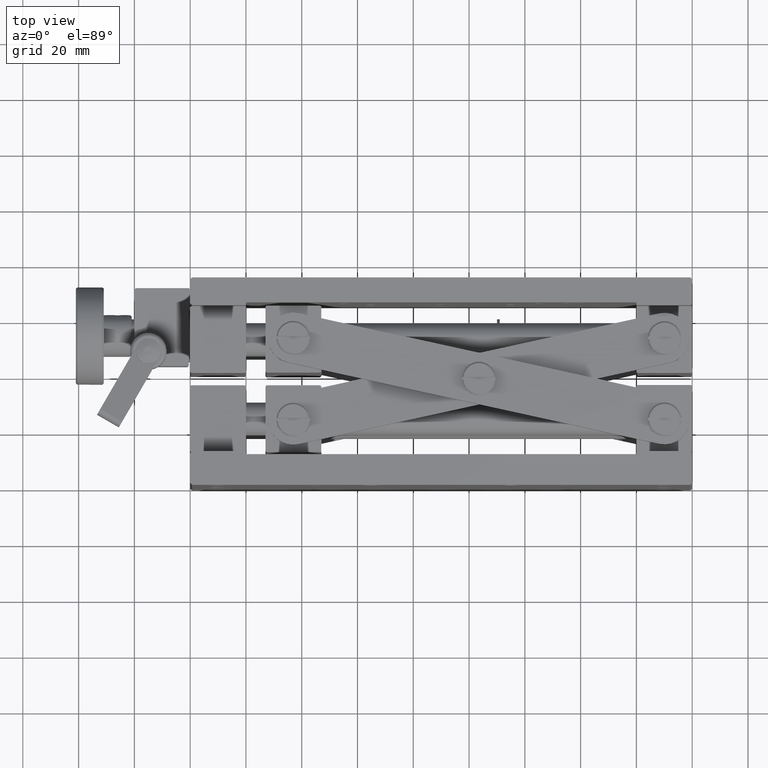
[diagram: clean part render]
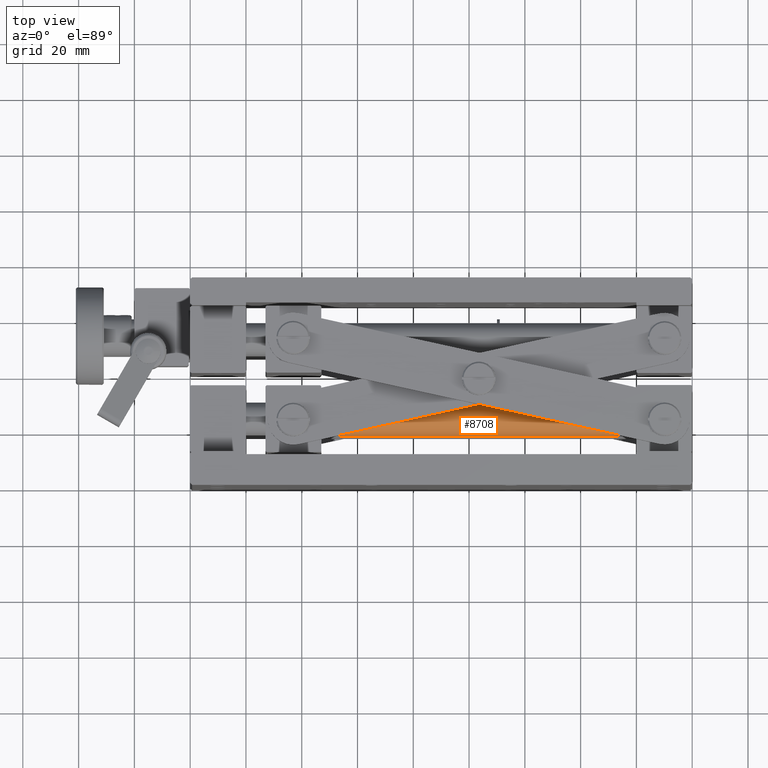
[diagram: same view with one face highlighted and labeled with its STEP entity id]
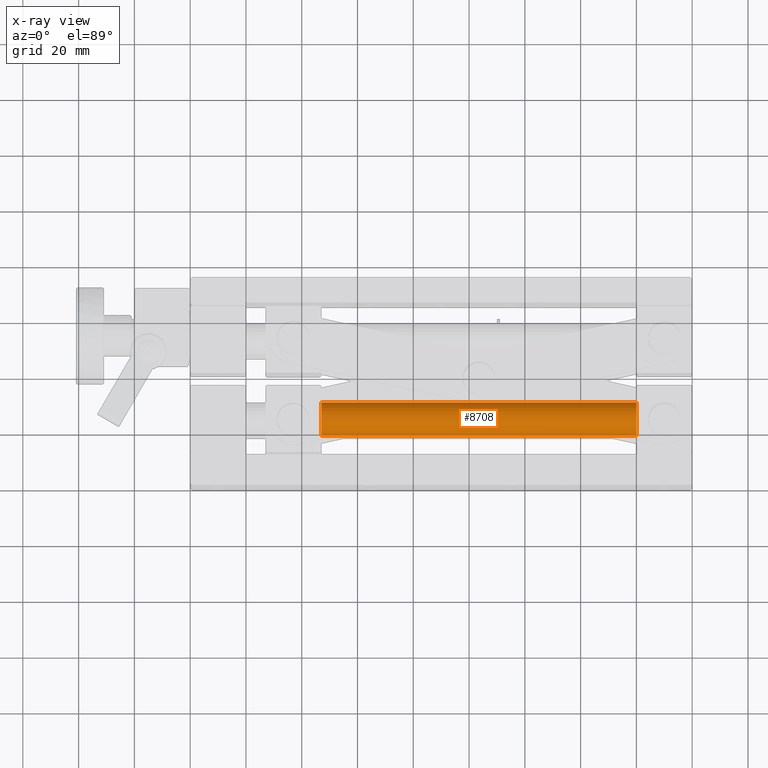
[diagram: x-ray of the same camera — body ghosted, the highlighted face saturated]
A machine part, top view. The second image highlights one B-rep face of the part: STEP entity #8708.
The next image is the same camera in x-ray: the body ghosted, the highlighted face saturated — about 0% of this face is hidden behind the body in this view.
In plain terms, the highlighted cylindrical surface (bore or boss wall) has radius 6 mm, axis along (-1, 0, 0).
Its self-contained STEP definition (entity closure, byte-faithful):
#138 = CARTESIAN_POINT ( 'NONE',  ( 180.0000000000000000, 24.00000000000000000, -28.50000000000000000 ) ) ;
#170 = CARTESIAN_POINT ( 'NONE',  ( 46.99999999999998579, 24.00000000000000000, -28.50000000000000000 ) ) ;
#345 = DIRECTION ( 'NONE',  ( 0.000000000000000000, 0.000000000000000000, 1.000000000000000000 ) ) ;
#422 = ORIENTED_EDGE ( 'NONE', *, *, #5682, .T. ) ;
#829 = AXIS2_PLACEMENT_3D ( 'NONE', #138, #7785, #3995 ) ;
#1549 = FACE_OUTER_BOUND ( 'NONE', #8680, .T. ) ;
#2032 = CARTESIAN_POINT ( 'NONE',  ( 160.0000000000000000, 24.00000000000000000, -22.50000000000000000 ) ) ;
#2649 = CYLINDRICAL_SURFACE ( 'NONE', #829, 6.000000000000001776 ) ;
#3995 = DIRECTION ( 'NONE',  ( 0.000000000000000000, 0.000000000000000000, 1.000000000000000000 ) ) ;
#5682 = EDGE_CURVE ( 'NONE', #12068, #12068, #13792, .T. ) ;
#6639 = DIRECTION ( 'NONE',  ( 1.000000000000000000, -0.000000000000000000, -0.000000000000000000 ) ) ;
#7184 = CARTESIAN_POINT ( 'NONE',  ( 160.0000000000000000, 24.00000000000000000, -28.50000000000000000 ) ) ;
#7785 = DIRECTION ( 'NONE',  ( -1.000000000000000000, 0.000000000000000000, 0.000000000000000000 ) ) ;
#8369 = AXIS2_PLACEMENT_3D ( 'NONE', #170, #6639, #345 ) ;
#8680 = EDGE_LOOP ( 'NONE', ( #13050 ) ) ;
#8708 = ADVANCED_FACE ( 'NONE', ( #1549, #14174 ), #2649, .T. ) ;
#9047 = EDGE_CURVE ( 'NONE', #11362, #11362, #15610, .T. ) ;
#9848 = CARTESIAN_POINT ( 'NONE',  ( 46.99999999999998579, 24.00000000000000000, -22.50000000000000000 ) ) ;
#10577 = AXIS2_PLACEMENT_3D ( 'NONE', #7184, #11080, #11237 ) ;
#11080 = DIRECTION ( 'NONE',  ( -1.000000000000000000, 0.000000000000000000, 0.000000000000000000 ) ) ;
#11237 = DIRECTION ( 'NONE',  ( 0.000000000000000000, 0.000000000000000000, 1.000000000000000000 ) ) ;
#11362 = VERTEX_POINT ( 'NONE', #9848 ) ;
#12068 = VERTEX_POINT ( 'NONE', #2032 ) ;
#13050 = ORIENTED_EDGE ( 'NONE', *, *, #9047, .T. ) ;
#13792 = CIRCLE ( 'NONE', #10577, 6.000000000000001776 ) ;
#14174 = FACE_OUTER_BOUND ( 'NONE', #15308, .T. ) ;
#15308 = EDGE_LOOP ( 'NONE', ( #422 ) ) ;
#15610 = CIRCLE ( 'NONE', #8369, 6.000000000000001776 ) ;